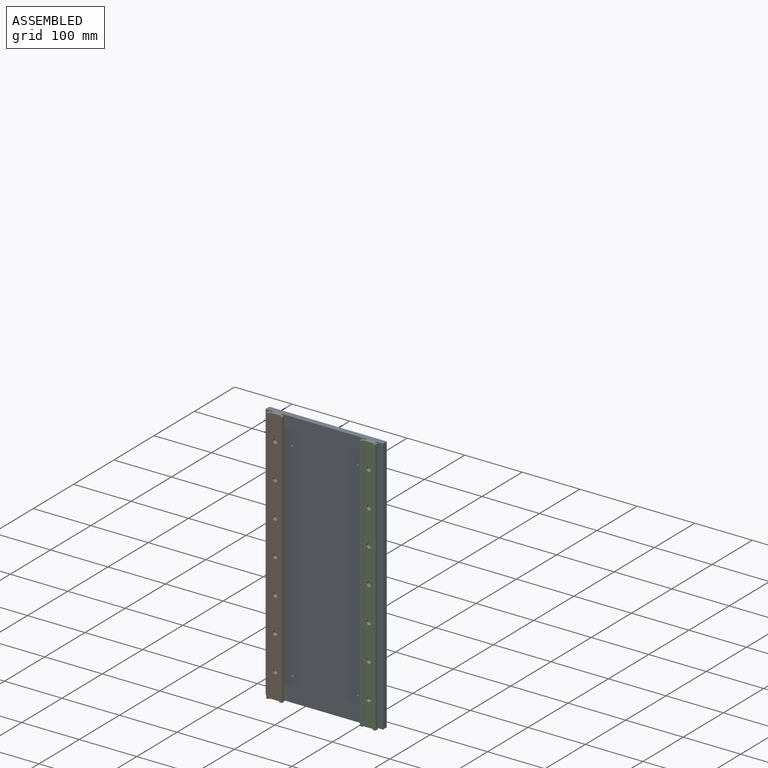
[diagram: assembled view]
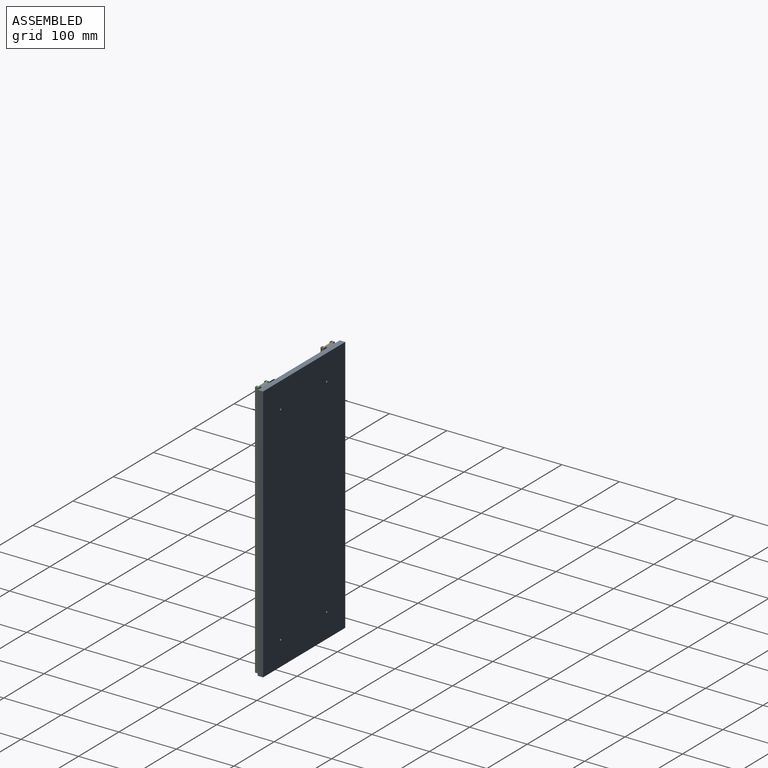
[diagram: assembled view, second angle]
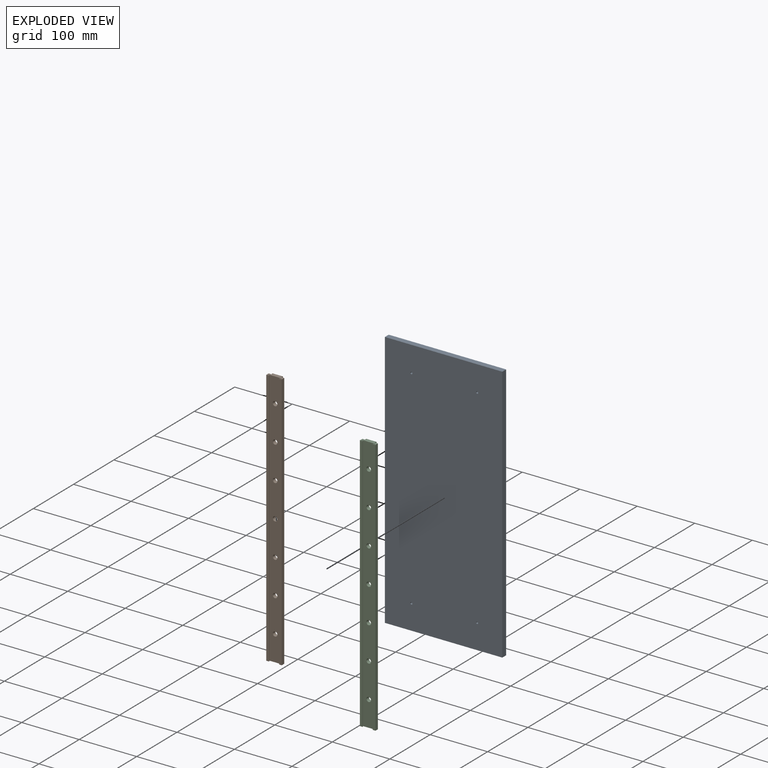
[diagram: exploded view]
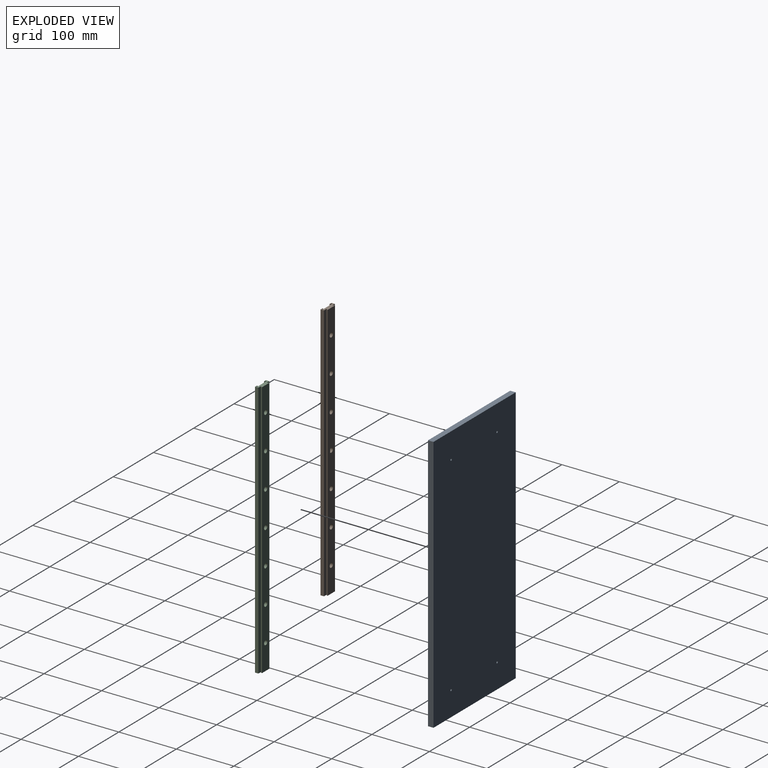
[diagram: exploded view, second angle]
ASSEMBLY  parts=3 mates=4
PART A: 10 faces, bbox 204.1x9.5x449.3 mm
  f0: plane 449.26x9.53mm, normal (1,0,0), area 4279.2mm2, adj f1,f3,f4,f5
  f1: plane 204.11x9.53mm, normal (0,0,1), area 1944.1mm2, adj f0,f2,f4,f5
  f2: plane 449.26x9.53mm, normal (-1,0,0), area 4279.2mm2, adj f1,f3,f4,f5
  f3: plane 204.11x9.53mm, normal (0,0,-1), area 1944.1mm2, adj f0,f2,f4,f5
  f4: plane 449.26x204.11mm, normal (0,-1,0), area 91657.8mm2, adj f0,f1,f2,f3,f6,f7,f8,f9
  f5: plane 449.26x204.11mm, normal (0,1,0), area 91657.8mm2, adj f0,f1,f2,f3,f6,f7,f8,f9
  f6: cylinder r=1.79mm len=9.53mm, axis (0,-1,0), area 106.9mm2, adj f4,f5
  f7: cylinder r=1.79mm len=9.53mm, axis (0,-1,0), area 106.9mm2, adj f4,f5
  f8: cylinder r=1.79mm len=9.53mm, axis (0,-1,0), area 106.9mm2, adj f4,f5
  f9: cylinder r=1.79mm len=9.53mm, axis (0,-1,0), area 106.9mm2, adj f4,f5
PART B: 29 faces, bbox 27x449.3x9.2 mm
  f0: plane 449.26x23.83mm, normal (0,0,1), area 10362.2mm2, adj f1,f19,f20,f21,f22,f23,f24,f25
  f1: plane 449.26x1.5mm, normal (1,0,0), area 672.8mm2, adj f0,f2,f20,f21
  f2: plane 449.26x3.11mm, normal (0,0,-1), area 1397.9mm2, adj f1,f3,f20,f21
  f3: plane 449.26x1.13mm, normal (1,0,0), area 507.8mm2, adj f2,f4,f20,f21
  f4: plane 449.26x4.7mm, normal (0,0,1), area 2111.1mm2, adj f3,f5,f20,f21
  f5: plane 449.26x5.98mm, normal (-1,0,0), area 2687.4mm2, adj f4,f6,f20,f21
  f6: plane 449.26x5.98mm, normal (0,0,-1), area 2687.4mm2, adj f5,f7,f20,f21
  f7: plane 449.26x1.64mm, normal (-1,0,0), area 736mm2, adj f6,f8,f20,f21
  f8: plane 449.26x1.59mm, normal (0,0,1), area 713.2mm2, adj f7,f9,f20,f21
  f9: plane 449.26x1.59mm, normal (-1,0,0), area 713.2mm2, adj f8,f10,f20,f21
  f10: plane 449.26x18.21mm, normal (0,0,-1), area 7840.3mm2, adj f9,f11,f20,f21,f22,f23,f24,f25
  f11: plane 449.26x1.59mm, normal (1,0,0), area 713.2mm2, adj f10,f12,f20,f21
  f12: plane 449.26x1.59mm, normal (0,0,1), area 713.2mm2, adj f11,f13,f20,f21
  f13: plane 449.26x1.65mm, normal (1,0,0), area 741.7mm2, adj f12,f14,f20,f21
  f14: plane 449.26x5.98mm, normal (0,0,-1), area 2687.4mm2, adj f13,f15,f20,f21
  f15: plane 449.26x5.98mm, normal (1,0,0), area 2687.4mm2, adj f14,f16,f20,f21
  f16: plane 449.26x4.7mm, normal (0,0,1), area 2111.1mm2, adj f15,f17,f20,f21
  f17: plane 449.26x1.13mm, normal (-1,0,0), area 507.8mm2, adj f16,f18,f20,f21
  f18: plane 449.26x3.11mm, normal (0,0,-1), area 1397.9mm2, adj f17,f19,f20,f21
  f19: plane 449.26x1.5mm, normal (-1,0,0), area 672.8mm2, adj f0,f18,f20,f21
  f20: plane 27x9.22mm, normal (0,-1,0), area 159.6mm2, adj f0,f1,f2,f3,f4,f5,f6,f7
  f21: plane 27x9.22mm, normal (0,1,0), area 159.6mm2, adj f0,f1,f2,f3,f4,f5,f6,f7
  f22: cylinder r=3.94mm len=7.88mm, axis (0,0,1), area 163.1mm2, adj f0,f10
  f23: cylinder r=3.94mm len=7.88mm, axis (0,0,1), area 163.1mm2, adj f0,f10
  f24: cylinder r=3.94mm len=7.88mm, axis (0,0,1), area 163.1mm2, adj f0,f10
  f25: cylinder r=3.94mm len=7.88mm, axis (0,0,1), area 163.1mm2, adj f0,f10
  f26: cylinder r=3.94mm len=7.88mm, axis (0,0,1), area 163.1mm2, adj f0,f10
  f27: cylinder r=3.94mm len=7.88mm, axis (0,0,1), area 163.1mm2, adj f0,f10
  f28: cylinder r=3.94mm len=7.88mm, axis (0,0,1), area 163.1mm2, adj f0,f10
PART C: same geometry as B
PLACE A t=(42.37,71.95,33.67)mm
PLACE B rot(axis=(1,0,0),90deg) t=(-38.56,55.84,258.3)mm
PLACE C rot(axis=(1,0,0),90deg) t=(124.27,55.84,258.3)mm
MATE planar B.f21 <-> A.f1  axis (0,0,1) through (-38.55,58.33,258.3)mm
MATE planar B.f10 <-> A.f4  axis (0,1,0) through (-38.55,62.42,33.64)mm
MATE planar C.f21 <-> A.f1  axis (0,0,1) through (124.27,58.33,258.3)mm
MATE planar C.f10 <-> A.f4  axis (0,1,0) through (124.27,62.42,33.64)mm
